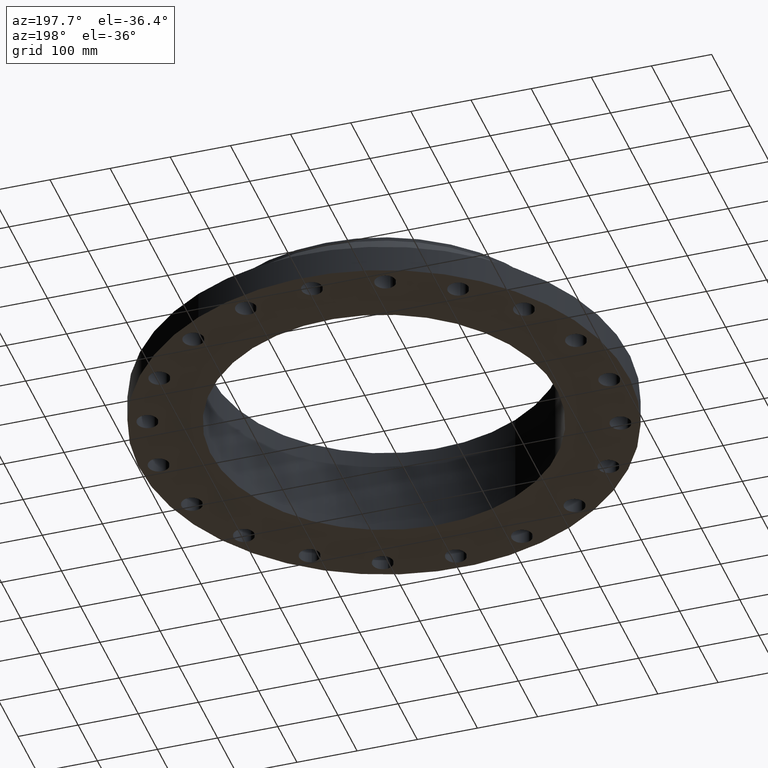
[diagram: clean part render]
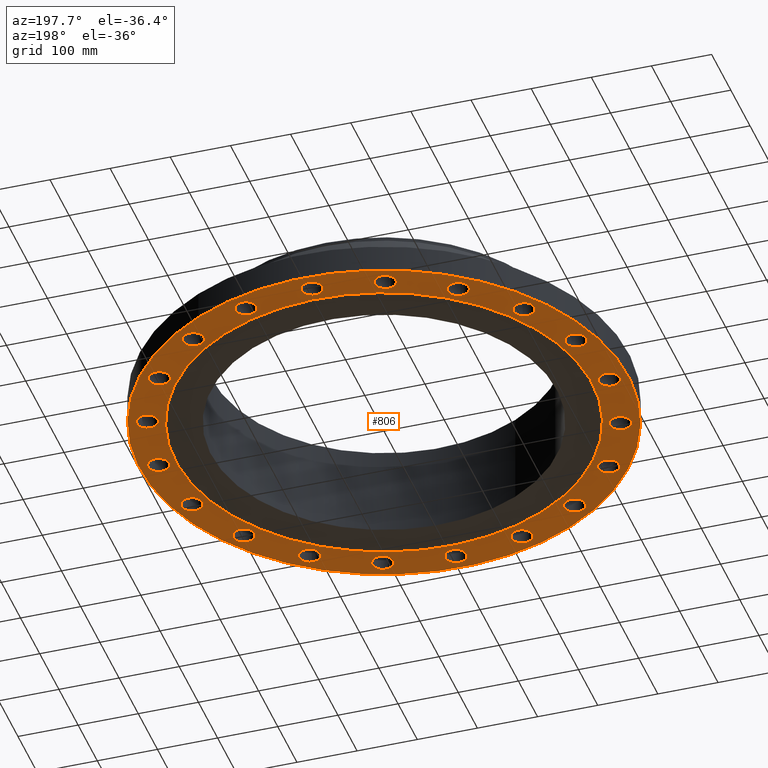
[diagram: same view with one face highlighted and labeled with its STEP entity id]
A machine part, auxiliary view. The second image highlights one B-rep face of the part: STEP entity #806.
In plain terms, the highlighted planar face has unit normal (0, 0, -1).
Its self-contained STEP definition (entity closure, byte-faithful):
#51=AXIS2_PLACEMENT_3D('Circle Axis2P3D',#49,#50,$) ;
#77=AXIS2_PLACEMENT_3D('Circle Axis2P3D',#75,#76,$) ;
#99=AXIS2_PLACEMENT_3D('Circle Axis2P3D',#97,#98,$) ;
#134=AXIS2_PLACEMENT_3D('Circle Axis2P3D',#132,#133,$) ;
#427=AXIS2_PLACEMENT_3D('Plane Axis2P3D',#424,#425,#426) ;
#431=AXIS2_PLACEMENT_3D('Circle Axis2P3D',#429,#430,$) ;
#440=AXIS2_PLACEMENT_3D('Circle Axis2P3D',#438,#439,$) ;
#466=AXIS2_PLACEMENT_3D('Circle Axis2P3D',#464,#465,$) ;
#475=AXIS2_PLACEMENT_3D('Circle Axis2P3D',#473,#474,$) ;
#484=AXIS2_PLACEMENT_3D('Circle Axis2P3D',#482,#483,$) ;
#493=AXIS2_PLACEMENT_3D('Circle Axis2P3D',#491,#492,$) ;
#502=AXIS2_PLACEMENT_3D('Circle Axis2P3D',#500,#501,$) ;
#511=AXIS2_PLACEMENT_3D('Circle Axis2P3D',#509,#510,$) ;
#520=AXIS2_PLACEMENT_3D('Circle Axis2P3D',#518,#519,$) ;
#529=AXIS2_PLACEMENT_3D('Circle Axis2P3D',#527,#528,$) ;
#538=AXIS2_PLACEMENT_3D('Circle Axis2P3D',#536,#537,$) ;
#547=AXIS2_PLACEMENT_3D('Circle Axis2P3D',#545,#546,$) ;
#556=AXIS2_PLACEMENT_3D('Circle Axis2P3D',#554,#555,$) ;
#565=AXIS2_PLACEMENT_3D('Circle Axis2P3D',#563,#564,$) ;
#574=AXIS2_PLACEMENT_3D('Circle Axis2P3D',#572,#573,$) ;
#583=AXIS2_PLACEMENT_3D('Circle Axis2P3D',#581,#582,$) ;
#592=AXIS2_PLACEMENT_3D('Circle Axis2P3D',#590,#591,$) ;
#601=AXIS2_PLACEMENT_3D('Circle Axis2P3D',#599,#600,$) ;
#610=AXIS2_PLACEMENT_3D('Circle Axis2P3D',#608,#609,$) ;
#619=AXIS2_PLACEMENT_3D('Circle Axis2P3D',#617,#618,$) ;
#628=AXIS2_PLACEMENT_3D('Circle Axis2P3D',#626,#627,$) ;
#637=AXIS2_PLACEMENT_3D('Circle Axis2P3D',#635,#636,$) ;
#646=AXIS2_PLACEMENT_3D('Circle Axis2P3D',#644,#645,$) ;
#655=AXIS2_PLACEMENT_3D('Circle Axis2P3D',#653,#654,$) ;
#664=AXIS2_PLACEMENT_3D('Circle Axis2P3D',#662,#663,$) ;
#673=AXIS2_PLACEMENT_3D('Circle Axis2P3D',#671,#672,$) ;
#682=AXIS2_PLACEMENT_3D('Circle Axis2P3D',#680,#681,$) ;
#691=AXIS2_PLACEMENT_3D('Circle Axis2P3D',#689,#690,$) ;
#700=AXIS2_PLACEMENT_3D('Circle Axis2P3D',#698,#699,$) ;
#709=AXIS2_PLACEMENT_3D('Circle Axis2P3D',#707,#708,$) ;
#718=AXIS2_PLACEMENT_3D('Circle Axis2P3D',#716,#717,$) ;
#727=AXIS2_PLACEMENT_3D('Circle Axis2P3D',#725,#726,$) ;
#736=AXIS2_PLACEMENT_3D('Circle Axis2P3D',#734,#735,$) ;
#745=AXIS2_PLACEMENT_3D('Circle Axis2P3D',#743,#744,$) ;
#754=AXIS2_PLACEMENT_3D('Circle Axis2P3D',#752,#753,$) ;
#763=AXIS2_PLACEMENT_3D('Circle Axis2P3D',#761,#762,$) ;
#772=AXIS2_PLACEMENT_3D('Circle Axis2P3D',#770,#771,$) ;
#781=AXIS2_PLACEMENT_3D('Circle Axis2P3D',#779,#780,$) ;
#790=AXIS2_PLACEMENT_3D('Circle Axis2P3D',#788,#789,$) ;
#799=AXIS2_PLACEMENT_3D('Circle Axis2P3D',#797,#798,$) ;
#44=CARTESIAN_POINT('Vertex',(14.1444680324,0.330803621638,0.)) ;
#49=CARTESIAN_POINT('Axis2P3D Location',(14.7500000001,0.,0.)) ;
#53=CARTESIAN_POINT('Vertex',(15.3555319678,-0.330803621638,0.)) ;
#75=CARTESIAN_POINT('Axis2P3D Location',(14.7500000001,0.,0.)) ;
#97=CARTESIAN_POINT('Axis2P3D Location',(0.,0.,1.1189649382E-015)) ;
#101=CARTESIAN_POINT('Vertex',(-7.6708086177,-14.0413209903,1.1189649382E-015)) ;
#103=CARTESIAN_POINT('Vertex',(7.6708086177,14.0413209903,1.1189649382E-015)) ;
#132=CARTESIAN_POINT('Axis2P3D Location',(0.,0.,1.1189649382E-015)) ;
#424=CARTESIAN_POINT('Axis2P3D Location',(0.,11.312,0.)) ;
#429=CARTESIAN_POINT('Axis2P3D Location',(0.,0.,0.)) ;
#433=CARTESIAN_POINT('Vertex',(-6.53217296351,-11.9570624058,0.)) ;
#435=CARTESIAN_POINT('Vertex',(6.53217296351,11.9570624058,0.)) ;
#438=CARTESIAN_POINT('Axis2P3D Location',(0.,0.,0.)) ;
#464=CARTESIAN_POINT('Axis2P3D Location',(14.0280836154,-4.55800066705,0.)) ;
#468=CARTESIAN_POINT('Vertex',(13.5544124326,-4.05626805842,0.)) ;
#470=CARTESIAN_POINT('Vertex',(14.5017547982,-5.05973327568,0.)) ;
#473=CARTESIAN_POINT('Axis2P3D Location',(14.0280836154,-4.55800066705,0.)) ;
#482=CARTESIAN_POINT('Axis2P3D Location',(11.9330006671,-8.66983247135,0.)) ;
#486=CARTESIAN_POINT('Vertex',(11.6375565048,-8.04628395923,0.)) ;
#488=CARTESIAN_POINT('Vertex',(12.2284448294,-9.29338098346,-1.95818864186E-015)) ;
#491=CARTESIAN_POINT('Axis2P3D Location',(11.9330006671,-8.66983247135,0.)) ;
#500=CARTESIAN_POINT('Axis2P3D Location',(8.66983247135,-11.9330006671,0.)) ;
#504=CARTESIAN_POINT('Vertex',(8.58153546265,-11.2486735244,0.)) ;
#506=CARTESIAN_POINT('Vertex',(8.75812948005,-12.6173278098,0.)) ;
#509=CARTESIAN_POINT('Axis2P3D Location',(8.66983247135,-11.9330006671,0.)) ;
#518=CARTESIAN_POINT('Axis2P3D Location',(4.55800066705,-14.0280836154,0.)) ;
#522=CARTESIAN_POINT('Vertex',(4.68549393836,-13.3499645508,0.)) ;
#524=CARTESIAN_POINT('Vertex',(4.43050739573,-14.70620268,0.)) ;
#527=CARTESIAN_POINT('Axis2P3D Location',(4.55800066705,-14.0280836154,0.)) ;
#536=CARTESIAN_POINT('Axis2P3D Location',(4.12618320963E-015,-14.7500000001,0.)) ;
#540=CARTESIAN_POINT('Vertex',(0.330803621638,-14.1444680324,0.)) ;
#542=CARTESIAN_POINT('Vertex',(-0.330803621638,-15.3555319678,0.)) ;
#545=CARTESIAN_POINT('Axis2P3D Location',(4.33598913554E-015,-14.7500000001,0.)) ;
#554=CARTESIAN_POINT('Axis2P3D Location',(-4.55800066705,-14.0280836154,0.)) ;
#558=CARTESIAN_POINT('Vertex',(-4.05626805842,-13.5544124326,0.)) ;
#560=CARTESIAN_POINT('Vertex',(-5.05973327568,-14.5017547982,0.)) ;
#563=CARTESIAN_POINT('Axis2P3D Location',(-4.55800066705,-14.0280836154,0.)) ;
#572=CARTESIAN_POINT('Axis2P3D Location',(-8.66983247135,-11.9330006671,0.)) ;
#576=CARTESIAN_POINT('Vertex',(-8.04628395923,-11.6375565048,0.)) ;
#578=CARTESIAN_POINT('Vertex',(-9.29338098346,-12.2284448294,0.)) ;
#581=CARTESIAN_POINT('Axis2P3D Location',(-8.66983247135,-11.9330006671,0.)) ;
#590=CARTESIAN_POINT('Axis2P3D Location',(-11.9330006671,-8.66983247135,0.)) ;
#594=CARTESIAN_POINT('Vertex',(-11.2486735244,-8.58153546265,0.)) ;
#596=CARTESIAN_POINT('Vertex',(-12.6173278098,-8.75812948005,0.)) ;
#599=CARTESIAN_POINT('Axis2P3D Location',(-11.9330006671,-8.66983247135,0.)) ;
#608=CARTESIAN_POINT('Axis2P3D Location',(-14.0280836154,-4.55800066705,0.)) ;
#612=CARTESIAN_POINT('Vertex',(-13.3499645508,-4.68549393836,0.)) ;
#614=CARTESIAN_POINT('Vertex',(-14.70620268,-4.43050739573,0.)) ;
#617=CARTESIAN_POINT('Axis2P3D Location',(-14.0280836154,-4.55800066705,0.)) ;
#626=CARTESIAN_POINT('Axis2P3D Location',(-14.7500000001,-1.1189649382E-014,0.)) ;
#630=CARTESIAN_POINT('Vertex',(-14.1444680324,-0.330803621638,0.)) ;
#632=CARTESIAN_POINT('Vertex',(-15.3555319678,0.330803621638,0.)) ;
#635=CARTESIAN_POINT('Axis2P3D Location',(-14.7500000001,-6.71378962923E-015,0.)) ;
#644=CARTESIAN_POINT('Axis2P3D Location',(-14.0280836154,4.55800066705,0.)) ;
#648=CARTESIAN_POINT('Vertex',(-13.5544124326,4.05626805842,0.)) ;
#650=CARTESIAN_POINT('Vertex',(-14.5017547982,5.05973327568,0.)) ;
#653=CARTESIAN_POINT('Axis2P3D Location',(-14.0280836154,4.55800066705,0.)) ;
#662=CARTESIAN_POINT('Axis2P3D Location',(-11.9330006671,8.66983247135,0.)) ;
#666=CARTESIAN_POINT('Vertex',(-11.6375565048,8.04628395923,0.)) ;
#668=CARTESIAN_POINT('Vertex',(-12.2284448294,9.29338098346,-1.95818864186E-015)) ;
#671=CARTESIAN_POINT('Axis2P3D Location',(-11.9330006671,8.66983247135,0.)) ;
#680=CARTESIAN_POINT('Axis2P3D Location',(-8.66983247135,11.9330006671,0.)) ;
#684=CARTESIAN_POINT('Vertex',(-8.58153546265,11.2486735244,0.)) ;
#686=CARTESIAN_POINT('Vertex',(-8.75812948005,12.6173278098,0.)) ;
#689=CARTESIAN_POINT('Axis2P3D Location',(-8.66983247135,11.9330006671,0.)) ;
#698=CARTESIAN_POINT('Axis2P3D Location',(-4.55800066705,14.0280836154,0.)) ;
#702=CARTESIAN_POINT('Vertex',(-4.68549393836,13.3499645508,0.)) ;
#704=CARTESIAN_POINT('Vertex',(-4.43050739573,14.70620268,-1.95818864186E-015)) ;
#707=CARTESIAN_POINT('Axis2P3D Location',(-4.55800066705,14.0280836154,0.)) ;
#716=CARTESIAN_POINT('Axis2P3D Location',(-1.61550562953E-014,14.7500000001,0.)) ;
#720=CARTESIAN_POINT('Vertex',(-0.330803621638,14.1444680324,0.)) ;
#722=CARTESIAN_POINT('Vertex',(0.330803621638,15.3555319678,0.)) ;
#725=CARTESIAN_POINT('Axis2P3D Location',(-1.5455703209E-014,14.7500000001,0.)) ;
#734=CARTESIAN_POINT('Axis2P3D Location',(4.55800066705,14.0280836154,0.)) ;
#738=CARTESIAN_POINT('Vertex',(4.05626805842,13.5544124326,0.)) ;
#740=CARTESIAN_POINT('Vertex',(5.05973327568,14.5017547982,-1.95818864186E-015)) ;
#743=CARTESIAN_POINT('Axis2P3D Location',(4.55800066705,14.0280836154,0.)) ;
#752=CARTESIAN_POINT('Axis2P3D Location',(8.66983247135,11.9330006671,0.)) ;
#756=CARTESIAN_POINT('Vertex',(8.04628395923,11.6375565048,0.)) ;
#758=CARTESIAN_POINT('Vertex',(9.29338098346,12.2284448294,0.)) ;
#761=CARTESIAN_POINT('Axis2P3D Location',(8.66983247135,11.9330006671,0.)) ;
#770=CARTESIAN_POINT('Axis2P3D Location',(11.9330006671,8.66983247135,0.)) ;
#774=CARTESIAN_POINT('Vertex',(11.2486735244,8.58153546265,0.)) ;
#776=CARTESIAN_POINT('Vertex',(12.6173278098,8.75812948005,0.)) ;
#779=CARTESIAN_POINT('Axis2P3D Location',(11.9330006671,8.66983247135,0.)) ;
#788=CARTESIAN_POINT('Axis2P3D Location',(14.0280836154,4.55800066705,0.)) ;
#792=CARTESIAN_POINT('Vertex',(13.3499645508,4.68549393836,0.)) ;
#794=CARTESIAN_POINT('Vertex',(14.70620268,4.43050739573,-1.95818864186E-015)) ;
#797=CARTESIAN_POINT('Axis2P3D Location',(14.0280836154,4.55800066705,0.)) ;
#50=DIRECTION('Axis2P3D Direction',(0.,-0.,-0.0393700787402)) ;
#76=DIRECTION('Axis2P3D Direction',(0.,-0.,-0.0393700787402)) ;
#98=DIRECTION('Axis2P3D Direction',(0.,0.,-0.0393700787402)) ;
#133=DIRECTION('Axis2P3D Direction',(0.,0.,-0.0393700787402)) ;
#425=DIRECTION('Axis2P3D Direction',(0.,0.,-0.0393700787402)) ;
#426=DIRECTION('Axis2P3D XDirection',(0.0393700787402,0.,0.)) ;
#430=DIRECTION('Axis2P3D Direction',(0.,0.,-0.0393700787402)) ;
#439=DIRECTION('Axis2P3D Direction',(0.,0.,-0.0393700787402)) ;
#465=DIRECTION('Axis2P3D Direction',(0.,0.,-0.0393700787402)) ;
#474=DIRECTION('Axis2P3D Direction',(0.,0.,-0.0393700787402)) ;
#483=DIRECTION('Axis2P3D Direction',(0.,0.,-0.0393700787402)) ;
#492=DIRECTION('Axis2P3D Direction',(0.,0.,-0.0393700787402)) ;
#501=DIRECTION('Axis2P3D Direction',(0.,0.,-0.0393700787402)) ;
#510=DIRECTION('Axis2P3D Direction',(0.,0.,-0.0393700787402)) ;
#519=DIRECTION('Axis2P3D Direction',(0.,0.,-0.0393700787402)) ;
#528=DIRECTION('Axis2P3D Direction',(0.,0.,-0.0393700787402)) ;
#537=DIRECTION('Axis2P3D Direction',(0.,0.,-0.0393700787402)) ;
#546=DIRECTION('Axis2P3D Direction',(0.,0.,-0.0393700787402)) ;
#555=DIRECTION('Axis2P3D Direction',(0.,0.,-0.0393700787402)) ;
#564=DIRECTION('Axis2P3D Direction',(0.,0.,-0.0393700787402)) ;
#573=DIRECTION('Axis2P3D Direction',(0.,0.,-0.0393700787402)) ;
#582=DIRECTION('Axis2P3D Direction',(0.,0.,-0.0393700787402)) ;
#591=DIRECTION('Axis2P3D Direction',(0.,0.,-0.0393700787402)) ;
#600=DIRECTION('Axis2P3D Direction',(0.,0.,-0.0393700787402)) ;
#609=DIRECTION('Axis2P3D Direction',(0.,0.,-0.0393700787402)) ;
#618=DIRECTION('Axis2P3D Direction',(0.,0.,-0.0393700787402)) ;
#627=DIRECTION('Axis2P3D Direction',(0.,0.,-0.0393700787402)) ;
#636=DIRECTION('Axis2P3D Direction',(0.,0.,-0.0393700787402)) ;
#645=DIRECTION('Axis2P3D Direction',(0.,0.,-0.0393700787402)) ;
#654=DIRECTION('Axis2P3D Direction',(0.,0.,-0.0393700787402)) ;
#663=DIRECTION('Axis2P3D Direction',(0.,0.,-0.0393700787402)) ;
#672=DIRECTION('Axis2P3D Direction',(0.,0.,-0.0393700787402)) ;
#681=DIRECTION('Axis2P3D Direction',(0.,0.,-0.0393700787402)) ;
#690=DIRECTION('Axis2P3D Direction',(0.,0.,-0.0393700787402)) ;
#699=DIRECTION('Axis2P3D Direction',(0.,0.,-0.0393700787402)) ;
#708=DIRECTION('Axis2P3D Direction',(0.,0.,-0.0393700787402)) ;
#717=DIRECTION('Axis2P3D Direction',(0.,0.,-0.0393700787402)) ;
#726=DIRECTION('Axis2P3D Direction',(0.,0.,-0.0393700787402)) ;
#735=DIRECTION('Axis2P3D Direction',(0.,0.,-0.0393700787402)) ;
#744=DIRECTION('Axis2P3D Direction',(0.,0.,-0.0393700787402)) ;
#753=DIRECTION('Axis2P3D Direction',(0.,0.,-0.0393700787402)) ;
#762=DIRECTION('Axis2P3D Direction',(0.,0.,-0.0393700787402)) ;
#771=DIRECTION('Axis2P3D Direction',(0.,0.,-0.0393700787402)) ;
#780=DIRECTION('Axis2P3D Direction',(0.,0.,-0.0393700787402)) ;
#789=DIRECTION('Axis2P3D Direction',(0.,0.,-0.0393700787402)) ;
#798=DIRECTION('Axis2P3D Direction',(0.,0.,-0.0393700787402)) ;
#453=ORIENTED_EDGE('',*,*,#105,.T.) ;
#454=ORIENTED_EDGE('',*,*,#136,.T.) ;
#457=ORIENTED_EDGE('',*,*,#79,.F.) ;
#458=ORIENTED_EDGE('',*,*,#55,.F.) ;
#461=ORIENTED_EDGE('',*,*,#442,.F.) ;
#462=ORIENTED_EDGE('',*,*,#437,.F.) ;
#479=ORIENTED_EDGE('',*,*,#472,.F.) ;
#480=ORIENTED_EDGE('',*,*,#477,.F.) ;
#497=ORIENTED_EDGE('',*,*,#490,.F.) ;
#498=ORIENTED_EDGE('',*,*,#495,.F.) ;
#515=ORIENTED_EDGE('',*,*,#508,.F.) ;
#516=ORIENTED_EDGE('',*,*,#513,.F.) ;
#533=ORIENTED_EDGE('',*,*,#526,.F.) ;
#534=ORIENTED_EDGE('',*,*,#531,.F.) ;
#551=ORIENTED_EDGE('',*,*,#544,.F.) ;
#552=ORIENTED_EDGE('',*,*,#549,.F.) ;
#569=ORIENTED_EDGE('',*,*,#562,.F.) ;
#570=ORIENTED_EDGE('',*,*,#567,.F.) ;
#587=ORIENTED_EDGE('',*,*,#580,.F.) ;
#588=ORIENTED_EDGE('',*,*,#585,.F.) ;
#605=ORIENTED_EDGE('',*,*,#598,.F.) ;
#606=ORIENTED_EDGE('',*,*,#603,.F.) ;
#623=ORIENTED_EDGE('',*,*,#616,.F.) ;
#624=ORIENTED_EDGE('',*,*,#621,.F.) ;
#641=ORIENTED_EDGE('',*,*,#634,.F.) ;
#642=ORIENTED_EDGE('',*,*,#639,.F.) ;
#659=ORIENTED_EDGE('',*,*,#652,.F.) ;
#660=ORIENTED_EDGE('',*,*,#657,.F.) ;
#677=ORIENTED_EDGE('',*,*,#670,.F.) ;
#678=ORIENTED_EDGE('',*,*,#675,.F.) ;
#695=ORIENTED_EDGE('',*,*,#688,.F.) ;
#696=ORIENTED_EDGE('',*,*,#693,.F.) ;
#713=ORIENTED_EDGE('',*,*,#706,.F.) ;
#714=ORIENTED_EDGE('',*,*,#711,.F.) ;
#731=ORIENTED_EDGE('',*,*,#724,.F.) ;
#732=ORIENTED_EDGE('',*,*,#729,.F.) ;
#749=ORIENTED_EDGE('',*,*,#742,.F.) ;
#750=ORIENTED_EDGE('',*,*,#747,.F.) ;
#767=ORIENTED_EDGE('',*,*,#760,.F.) ;
#768=ORIENTED_EDGE('',*,*,#765,.F.) ;
#785=ORIENTED_EDGE('',*,*,#778,.F.) ;
#786=ORIENTED_EDGE('',*,*,#783,.F.) ;
#803=ORIENTED_EDGE('',*,*,#796,.F.) ;
#804=ORIENTED_EDGE('',*,*,#801,.F.) ;
#459=FACE_BOUND('',#456,.T.) ;
#463=FACE_BOUND('',#460,.T.) ;
#481=FACE_BOUND('',#478,.T.) ;
#499=FACE_BOUND('',#496,.T.) ;
#517=FACE_BOUND('',#514,.T.) ;
#535=FACE_BOUND('',#532,.T.) ;
#553=FACE_BOUND('',#550,.T.) ;
#571=FACE_BOUND('',#568,.T.) ;
#589=FACE_BOUND('',#586,.T.) ;
#607=FACE_BOUND('',#604,.T.) ;
#625=FACE_BOUND('',#622,.T.) ;
#643=FACE_BOUND('',#640,.T.) ;
#661=FACE_BOUND('',#658,.T.) ;
#679=FACE_BOUND('',#676,.T.) ;
#697=FACE_BOUND('',#694,.T.) ;
#715=FACE_BOUND('',#712,.T.) ;
#733=FACE_BOUND('',#730,.T.) ;
#751=FACE_BOUND('',#748,.T.) ;
#769=FACE_BOUND('',#766,.T.) ;
#787=FACE_BOUND('',#784,.T.) ;
#805=FACE_BOUND('',#802,.T.) ;
#806=ADVANCED_FACE('PartBody',(#455,#459,#463,#481,#499,#517,#535,#553,#571,#589,#607,#625,#643,#661,#679,#697,#715,#733,#751,#769,#787,#805),#428,.T.) ;
#52=CIRCLE('generated circle',#51,0.690000000003) ;
#78=CIRCLE('generated circle',#77,0.690000000003) ;
#100=CIRCLE('generated circle',#99,16.0000000001) ;
#135=CIRCLE('generated circle',#134,16.0000000001) ;
#432=CIRCLE('generated circle',#431,13.6250000001) ;
#441=CIRCLE('generated circle',#440,13.6250000001) ;
#467=CIRCLE('generated circle',#466,0.690000000003) ;
#476=CIRCLE('generated circle',#475,0.690000000003) ;
#485=CIRCLE('generated circle',#484,0.690000000003) ;
#494=CIRCLE('generated circle',#493,0.690000000003) ;
#503=CIRCLE('generated circle',#502,0.690000000003) ;
#512=CIRCLE('generated circle',#511,0.690000000003) ;
#521=CIRCLE('generated circle',#520,0.690000000003) ;
#530=CIRCLE('generated circle',#529,0.690000000003) ;
#539=CIRCLE('generated circle',#538,0.690000000003) ;
#548=CIRCLE('generated circle',#547,0.690000000003) ;
#557=CIRCLE('generated circle',#556,0.690000000003) ;
#566=CIRCLE('generated circle',#565,0.690000000003) ;
#575=CIRCLE('generated circle',#574,0.690000000003) ;
#584=CIRCLE('generated circle',#583,0.690000000003) ;
#593=CIRCLE('generated circle',#592,0.690000000003) ;
#602=CIRCLE('generated circle',#601,0.690000000003) ;
#611=CIRCLE('generated circle',#610,0.690000000003) ;
#620=CIRCLE('generated circle',#619,0.690000000003) ;
#629=CIRCLE('generated circle',#628,0.690000000003) ;
#638=CIRCLE('generated circle',#637,0.690000000003) ;
#647=CIRCLE('generated circle',#646,0.690000000003) ;
#656=CIRCLE('generated circle',#655,0.690000000003) ;
#665=CIRCLE('generated circle',#664,0.690000000003) ;
#674=CIRCLE('generated circle',#673,0.690000000003) ;
#683=CIRCLE('generated circle',#682,0.690000000003) ;
#692=CIRCLE('generated circle',#691,0.690000000003) ;
#701=CIRCLE('generated circle',#700,0.690000000003) ;
#710=CIRCLE('generated circle',#709,0.690000000003) ;
#719=CIRCLE('generated circle',#718,0.690000000003) ;
#728=CIRCLE('generated circle',#727,0.690000000003) ;
#737=CIRCLE('generated circle',#736,0.690000000003) ;
#746=CIRCLE('generated circle',#745,0.690000000003) ;
#755=CIRCLE('generated circle',#754,0.690000000003) ;
#764=CIRCLE('generated circle',#763,0.690000000003) ;
#773=CIRCLE('generated circle',#772,0.690000000003) ;
#782=CIRCLE('generated circle',#781,0.690000000003) ;
#791=CIRCLE('generated circle',#790,0.690000000003) ;
#800=CIRCLE('generated circle',#799,0.690000000003) ;
#55=EDGE_CURVE('',#45,#54,#52,.T.) ;
#79=EDGE_CURVE('',#54,#45,#78,.T.) ;
#105=EDGE_CURVE('',#102,#104,#100,.T.) ;
#136=EDGE_CURVE('',#104,#102,#135,.T.) ;
#437=EDGE_CURVE('',#434,#436,#432,.T.) ;
#442=EDGE_CURVE('',#436,#434,#441,.T.) ;
#472=EDGE_CURVE('',#469,#471,#467,.T.) ;
#477=EDGE_CURVE('',#471,#469,#476,.T.) ;
#490=EDGE_CURVE('',#487,#489,#485,.T.) ;
#495=EDGE_CURVE('',#489,#487,#494,.T.) ;
#508=EDGE_CURVE('',#505,#507,#503,.T.) ;
#513=EDGE_CURVE('',#507,#505,#512,.T.) ;
#526=EDGE_CURVE('',#523,#525,#521,.T.) ;
#531=EDGE_CURVE('',#525,#523,#530,.T.) ;
#544=EDGE_CURVE('',#541,#543,#539,.T.) ;
#549=EDGE_CURVE('',#543,#541,#548,.T.) ;
#562=EDGE_CURVE('',#559,#561,#557,.T.) ;
#567=EDGE_CURVE('',#561,#559,#566,.T.) ;
#580=EDGE_CURVE('',#577,#579,#575,.T.) ;
#585=EDGE_CURVE('',#579,#577,#584,.T.) ;
#598=EDGE_CURVE('',#595,#597,#593,.T.) ;
#603=EDGE_CURVE('',#597,#595,#602,.T.) ;
#616=EDGE_CURVE('',#613,#615,#611,.T.) ;
#621=EDGE_CURVE('',#615,#613,#620,.T.) ;
#634=EDGE_CURVE('',#631,#633,#629,.T.) ;
#639=EDGE_CURVE('',#633,#631,#638,.T.) ;
#652=EDGE_CURVE('',#649,#651,#647,.T.) ;
#657=EDGE_CURVE('',#651,#649,#656,.T.) ;
#670=EDGE_CURVE('',#667,#669,#665,.T.) ;
#675=EDGE_CURVE('',#669,#667,#674,.T.) ;
#688=EDGE_CURVE('',#685,#687,#683,.T.) ;
#693=EDGE_CURVE('',#687,#685,#692,.T.) ;
#706=EDGE_CURVE('',#703,#705,#701,.T.) ;
#711=EDGE_CURVE('',#705,#703,#710,.T.) ;
#724=EDGE_CURVE('',#721,#723,#719,.T.) ;
#729=EDGE_CURVE('',#723,#721,#728,.T.) ;
#742=EDGE_CURVE('',#739,#741,#737,.T.) ;
#747=EDGE_CURVE('',#741,#739,#746,.T.) ;
#760=EDGE_CURVE('',#757,#759,#755,.T.) ;
#765=EDGE_CURVE('',#759,#757,#764,.T.) ;
#778=EDGE_CURVE('',#775,#777,#773,.T.) ;
#783=EDGE_CURVE('',#777,#775,#782,.T.) ;
#796=EDGE_CURVE('',#793,#795,#791,.T.) ;
#801=EDGE_CURVE('',#795,#793,#800,.T.) ;
#452=EDGE_LOOP('',(#453,#454)) ;
#456=EDGE_LOOP('',(#457,#458)) ;
#460=EDGE_LOOP('',(#461,#462)) ;
#478=EDGE_LOOP('',(#479,#480)) ;
#496=EDGE_LOOP('',(#497,#498)) ;
#514=EDGE_LOOP('',(#515,#516)) ;
#532=EDGE_LOOP('',(#533,#534)) ;
#550=EDGE_LOOP('',(#551,#552)) ;
#568=EDGE_LOOP('',(#569,#570)) ;
#586=EDGE_LOOP('',(#587,#588)) ;
#604=EDGE_LOOP('',(#605,#606)) ;
#622=EDGE_LOOP('',(#623,#624)) ;
#640=EDGE_LOOP('',(#641,#642)) ;
#658=EDGE_LOOP('',(#659,#660)) ;
#676=EDGE_LOOP('',(#677,#678)) ;
#694=EDGE_LOOP('',(#695,#696)) ;
#712=EDGE_LOOP('',(#713,#714)) ;
#730=EDGE_LOOP('',(#731,#732)) ;
#748=EDGE_LOOP('',(#749,#750)) ;
#766=EDGE_LOOP('',(#767,#768)) ;
#784=EDGE_LOOP('',(#785,#786)) ;
#802=EDGE_LOOP('',(#803,#804)) ;
#455=FACE_OUTER_BOUND('',#452,.T.) ;
#428=PLANE('',#427) ;
#45=VERTEX_POINT('',#44) ;
#54=VERTEX_POINT('',#53) ;
#102=VERTEX_POINT('',#101) ;
#104=VERTEX_POINT('',#103) ;
#434=VERTEX_POINT('',#433) ;
#436=VERTEX_POINT('',#435) ;
#469=VERTEX_POINT('',#468) ;
#471=VERTEX_POINT('',#470) ;
#487=VERTEX_POINT('',#486) ;
#489=VERTEX_POINT('',#488) ;
#505=VERTEX_POINT('',#504) ;
#507=VERTEX_POINT('',#506) ;
#523=VERTEX_POINT('',#522) ;
#525=VERTEX_POINT('',#524) ;
#541=VERTEX_POINT('',#540) ;
#543=VERTEX_POINT('',#542) ;
#559=VERTEX_POINT('',#558) ;
#561=VERTEX_POINT('',#560) ;
#577=VERTEX_POINT('',#576) ;
#579=VERTEX_POINT('',#578) ;
#595=VERTEX_POINT('',#594) ;
#597=VERTEX_POINT('',#596) ;
#613=VERTEX_POINT('',#612) ;
#615=VERTEX_POINT('',#614) ;
#631=VERTEX_POINT('',#630) ;
#633=VERTEX_POINT('',#632) ;
#649=VERTEX_POINT('',#648) ;
#651=VERTEX_POINT('',#650) ;
#667=VERTEX_POINT('',#666) ;
#669=VERTEX_POINT('',#668) ;
#685=VERTEX_POINT('',#684) ;
#687=VERTEX_POINT('',#686) ;
#703=VERTEX_POINT('',#702) ;
#705=VERTEX_POINT('',#704) ;
#721=VERTEX_POINT('',#720) ;
#723=VERTEX_POINT('',#722) ;
#739=VERTEX_POINT('',#738) ;
#741=VERTEX_POINT('',#740) ;
#757=VERTEX_POINT('',#756) ;
#759=VERTEX_POINT('',#758) ;
#775=VERTEX_POINT('',#774) ;
#777=VERTEX_POINT('',#776) ;
#793=VERTEX_POINT('',#792) ;
#795=VERTEX_POINT('',#794) ;